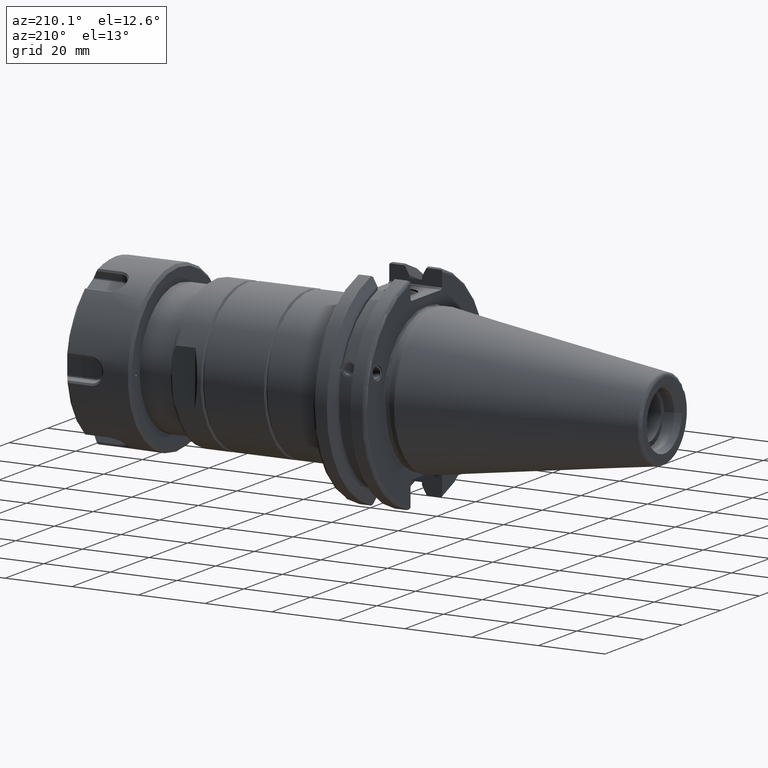
[diagram: clean part render]
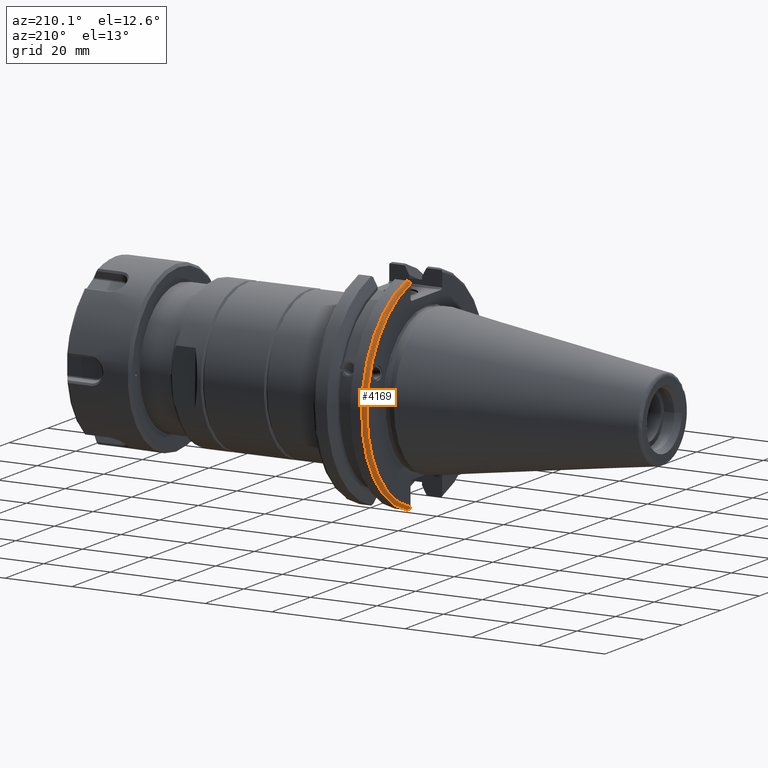
[diagram: same view with one face highlighted and labeled with its STEP entity id]
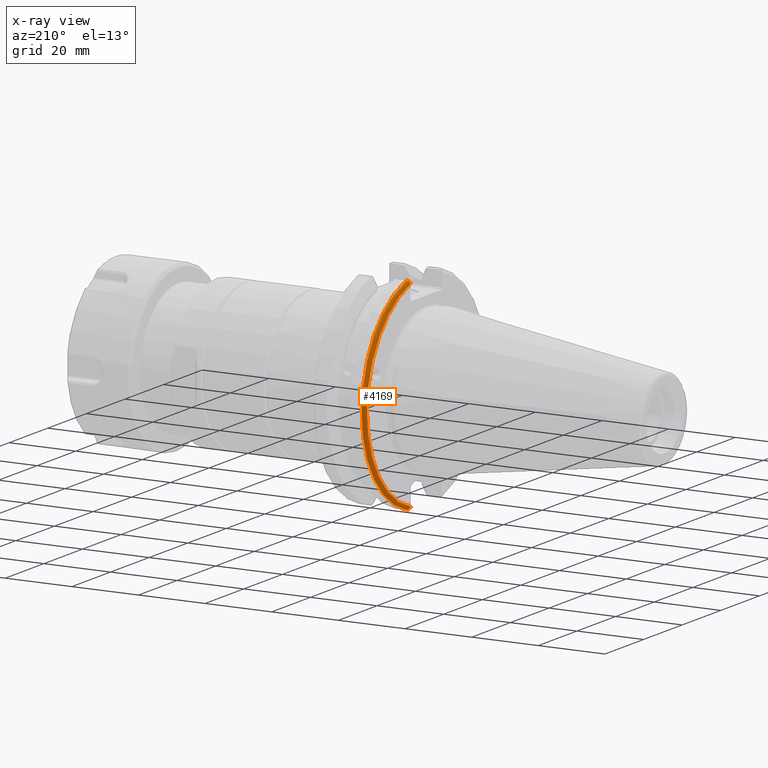
[diagram: x-ray of the same camera — body ghosted, the highlighted face saturated]
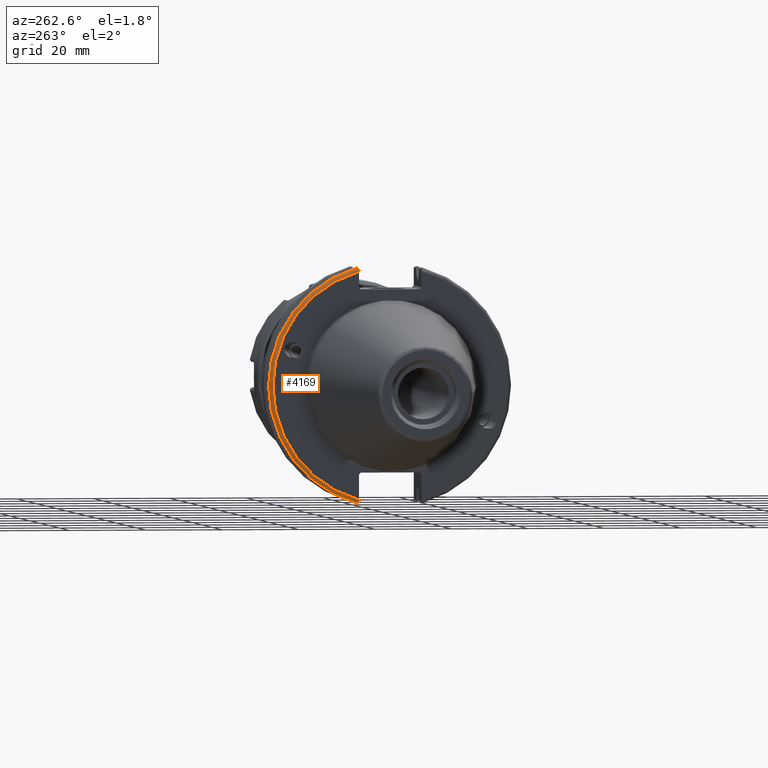
[diagram: same view with one face highlighted and labeled with its STEP entity id]
A machine part, auxiliary view. The second image highlights one B-rep face of the part: STEP entity #4169.
The next image is the same camera in x-ray: the body ghosted, the highlighted face saturated — about 0% of this face is hidden behind the body in this view.
A second angle (auxiliary view) of the same face is appended — the face is thin or edge-on in the first view.
In plain terms, the highlighted toroidal blend (fillet) surface has major radius 30.75 mm and minor (blend) radius 1 mm.
Its self-contained STEP definition (entity closure, byte-faithful):
#203=B_SPLINE_CURVE_WITH_KNOTS('',3,(#6798,#6799,#6800,#6801,#6802,#6803),
 .UNSPECIFIED.,.F.,.F.,(4,2,4),(0.0977210450333169,0.111963554372601,0.150804064902975),
 .UNSPECIFIED.);
#212=B_SPLINE_CURVE_WITH_KNOTS('',3,(#6943,#6944,#6945,#6946,#6947,#6948,
#6949,#6950),.UNSPECIFIED.,.F.,.F.,(4,2,2,4),(-0.104180282751876,-0.072978474246144,
-0.0343524753874979,0.),.UNSPECIFIED.);
#213=B_SPLINE_CURVE_WITH_KNOTS('',3,(#6953,#6954,#6955,#6956,#6957,#6958,
#6959,#6960),.UNSPECIFIED.,.F.,.F.,(4,2,2,4),(0.,0.0343524753874975,0.0729784742461445,
0.104180282751877),.UNSPECIFIED.);
#214=B_SPLINE_CURVE_WITH_KNOTS('',3,(#6961,#6962,#6963,#6964,#6965,#6966),
 .UNSPECIFIED.,.F.,.F.,(4,2,4),(0.452741154494498,0.491581665024872,0.505824174364157),
 .UNSPECIFIED.);
#285=TOROIDAL_SURFACE('',#4596,30.75,1.);
#597=FACE_OUTER_BOUND('',#872,.T.);
#872=EDGE_LOOP('',(#3188,#3189,#3190,#3191,#3192,#3193));
#1622=CIRCLE('',#4576,30.75);
#1630=CIRCLE('',#4597,31.75);
#1907=VERTEX_POINT('',#6736);
#1908=VERTEX_POINT('',#6738);
#1921=VERTEX_POINT('',#6797);
#1950=VERTEX_POINT('',#6941);
#1951=VERTEX_POINT('',#6942);
#1952=VERTEX_POINT('',#6951);
#2354=EDGE_CURVE('',#1908,#1907,#1622,.T.);
#2372=EDGE_CURVE('',#1921,#1908,#203,.T.);
#2415=EDGE_CURVE('',#1950,#1951,#212,.T.);
#2416=EDGE_CURVE('',#1951,#1952,#1630,.T.);
#2417=EDGE_CURVE('',#1952,#1921,#213,.T.);
#2418=EDGE_CURVE('',#1907,#1950,#214,.T.);
#3188=ORIENTED_EDGE('',*,*,#2415,.T.);
#3189=ORIENTED_EDGE('',*,*,#2416,.T.);
#3190=ORIENTED_EDGE('',*,*,#2417,.T.);
#3191=ORIENTED_EDGE('',*,*,#2372,.T.);
#3192=ORIENTED_EDGE('',*,*,#2354,.T.);
#3193=ORIENTED_EDGE('',*,*,#2418,.T.);
#4169=ADVANCED_FACE('',(#597),#285,.T.);
#4576=AXIS2_PLACEMENT_3D('',#6739,#5281,#5282);
#4596=AXIS2_PLACEMENT_3D('',#6940,#5356,#5357);
#4597=AXIS2_PLACEMENT_3D('',#6952,#5358,#5359);
#5281=DIRECTION('center_axis',(1.,0.,0.));
#5282=DIRECTION('ref_axis',(0.,1.,1.60812264967664E-16));
#5356=DIRECTION('center_axis',(1.,0.,0.));
#5357=DIRECTION('ref_axis',(0.,0.,-1.));
#5358=DIRECTION('center_axis',(-1.,0.,0.));
#5359=DIRECTION('ref_axis',(0.,1.,1.60812264967664E-16));
#6736=CARTESIAN_POINT('',(3.175,8.19,29.6392712461019));
#6738=CARTESIAN_POINT('',(3.175,8.18999999999999,-29.6392712461019));
#6739=CARTESIAN_POINT('Origin',(3.175,0.,0.));
#6797=CARTESIAN_POINT('',(3.31912772509028,8.19,-30.1755016258903));
#6798=CARTESIAN_POINT('Ctrl Pts',(3.31912772509028,8.19,-30.1755016258903));
#6799=CARTESIAN_POINT('Ctrl Pts',(3.29318362718666,8.19,-30.131014531546));
#6800=CARTESIAN_POINT('Ctrl Pts',(3.27103565282437,8.19,-30.0852355256475));
#6801=CARTESIAN_POINT('Ctrl Pts',(3.20451443291695,8.19,-29.9212724384851));
#6802=CARTESIAN_POINT('Ctrl Pts',(3.175,8.19,-29.7687396145364));
#6803=CARTESIAN_POINT('Ctrl Pts',(3.175,8.19,-29.6392712461019));
#6940=CARTESIAN_POINT('Origin',(4.175,0.,0.));
#6941=CARTESIAN_POINT('',(3.31912772509028,8.19,30.1755016258903));
#6942=CARTESIAN_POINT('',(4.175,8.67204822802685,30.5427254764662));
#6943=CARTESIAN_POINT('Ctrl Pts',(3.31912772509028,8.19,30.1755016258903));
#6944=CARTESIAN_POINT('Ctrl Pts',(3.36755369570114,8.2703682833078,30.2367261024977));
#6945=CARTESIAN_POINT('Ctrl Pts',(3.43232973376814,8.34909446036477,30.2966996242308));
#6946=CARTESIAN_POINT('Ctrl Pts',(3.58532758094931,8.48862804755884,30.4029961692546));
#6947=CARTESIAN_POINT('Ctrl Pts',(3.70655857052286,8.56482138642532,30.4610401774263));
#6948=CARTESIAN_POINT('Ctrl Pts',(3.92668295662254,8.6471881193939,30.5237870709558));
#6949=CARTESIAN_POINT('Ctrl Pts',(4.06049174870834,8.67204822802686,30.5427254764662));
#6950=CARTESIAN_POINT('Ctrl Pts',(4.175,8.67204822802686,30.5427254764662));
#6951=CARTESIAN_POINT('',(4.175,8.67204822802685,-30.5427254764662));
#6952=CARTESIAN_POINT('Origin',(4.175,0.,0.));
#6953=CARTESIAN_POINT('Ctrl Pts',(4.175,8.67204822802685,-30.5427254764662));
#6954=CARTESIAN_POINT('Ctrl Pts',(4.06049174870834,8.67204822802685,-30.5427254764662));
#6955=CARTESIAN_POINT('Ctrl Pts',(3.92668295662254,8.6471881193939,-30.5237870709558));
#6956=CARTESIAN_POINT('Ctrl Pts',(3.70655857052286,8.56482138642533,-30.4610401774263));
#6957=CARTESIAN_POINT('Ctrl Pts',(3.58532758094931,8.48862804755884,-30.4029961692546));
#6958=CARTESIAN_POINT('Ctrl Pts',(3.43232973376814,8.34909446036477,-30.2966996242308));
#6959=CARTESIAN_POINT('Ctrl Pts',(3.36755369570113,8.2703682833078,-30.2367261024977));
#6960=CARTESIAN_POINT('Ctrl Pts',(3.31912772509028,8.18999999999999,-30.1755016258903));
#6961=CARTESIAN_POINT('Ctrl Pts',(3.175,8.19,29.6392712461018));
#6962=CARTESIAN_POINT('Ctrl Pts',(3.175,8.19,29.7687396145364));
#6963=CARTESIAN_POINT('Ctrl Pts',(3.20451443291695,8.19,29.9212724384851));
#6964=CARTESIAN_POINT('Ctrl Pts',(3.27103565282437,8.19,30.0852355256475));
#6965=CARTESIAN_POINT('Ctrl Pts',(3.29318362718666,8.19,30.131014531546));
#6966=CARTESIAN_POINT('Ctrl Pts',(3.31912772509028,8.19,30.1755016258903));